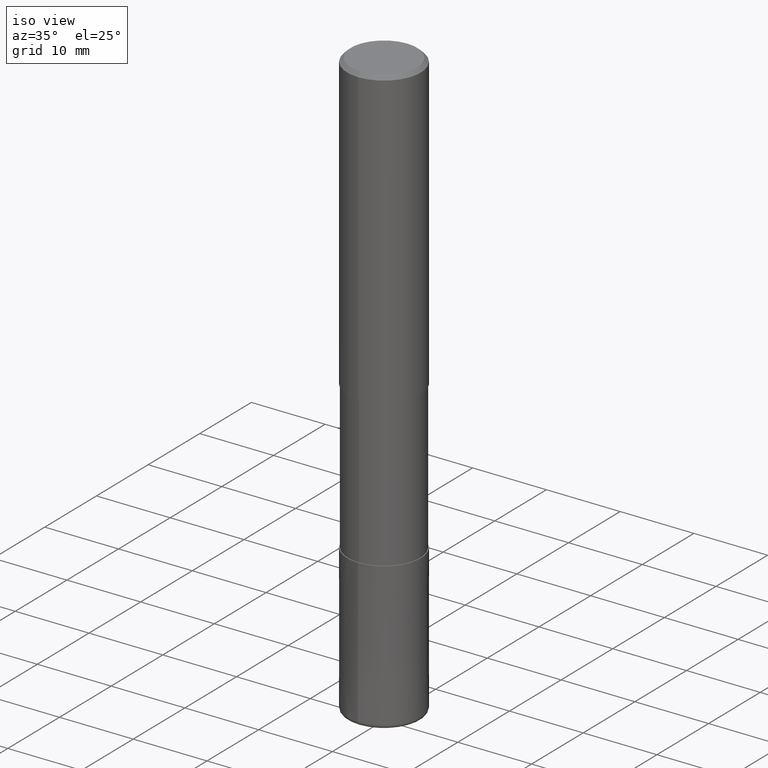
[diagram: clean part render]
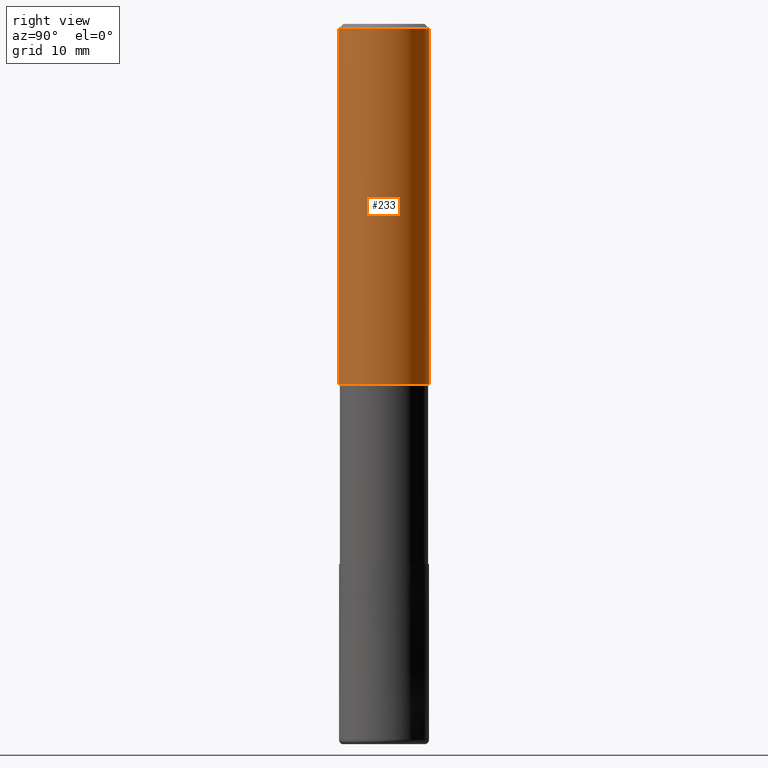
[diagram: tour spotlight — one face highlighted and labeled with its STEP entity id]
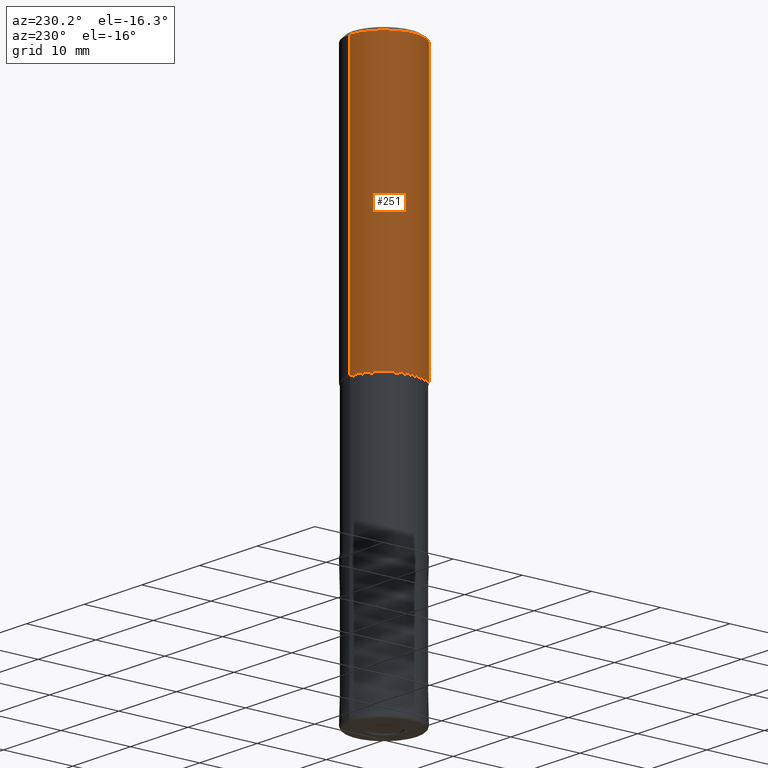
[diagram: tour spotlight — one face highlighted and labeled with its STEP entity id]
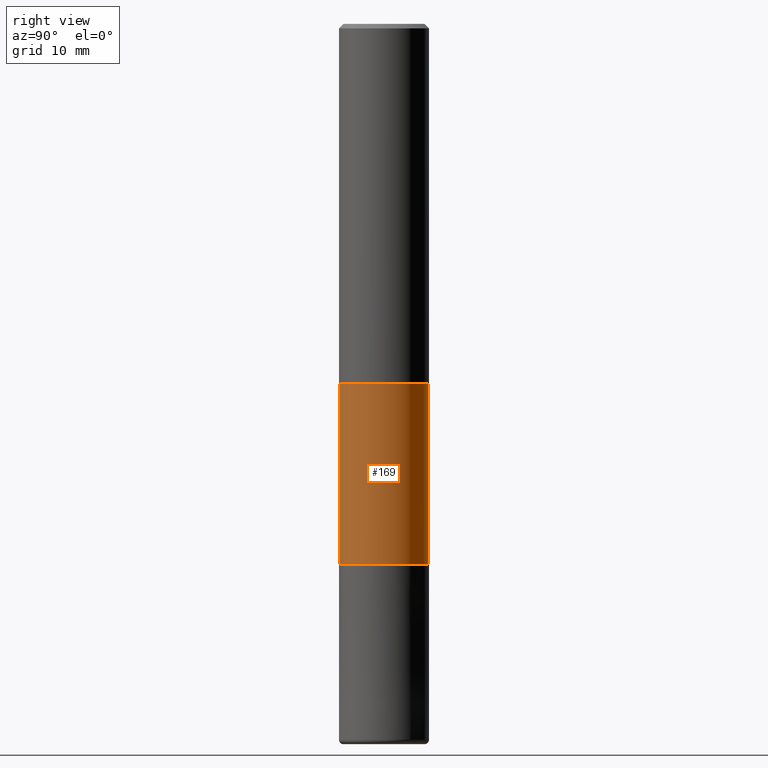
[diagram: tour spotlight — one face highlighted and labeled with its STEP entity id]
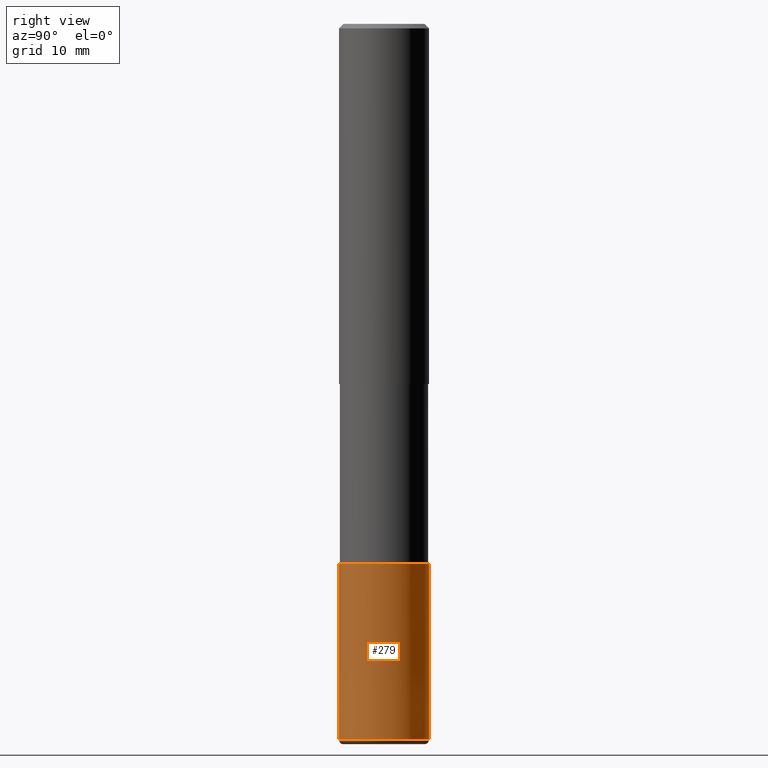
[diagram: tour spotlight — one face highlighted and labeled with its STEP entity id]
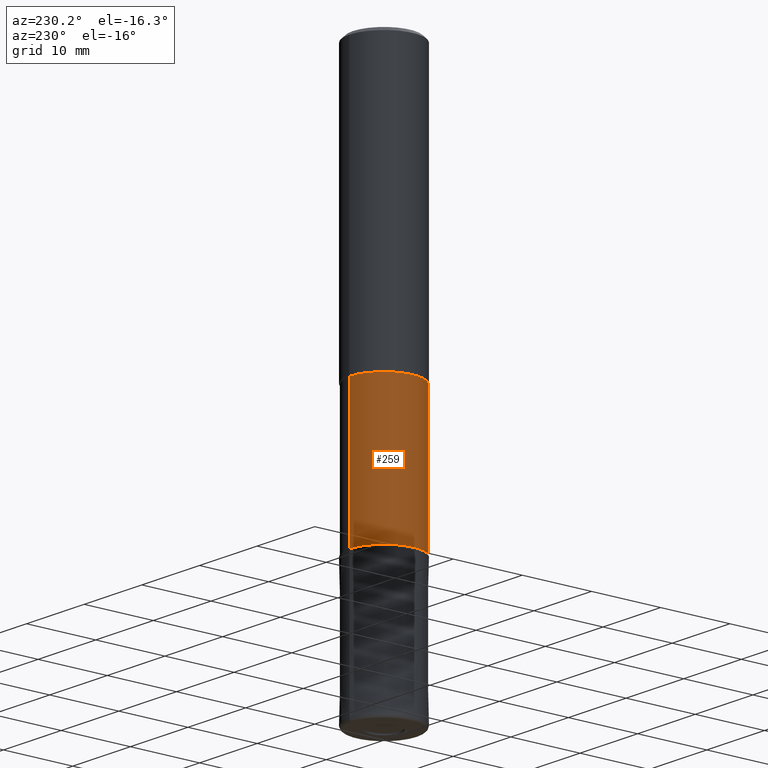
[diagram: tour spotlight — one face highlighted and labeled with its STEP entity id]
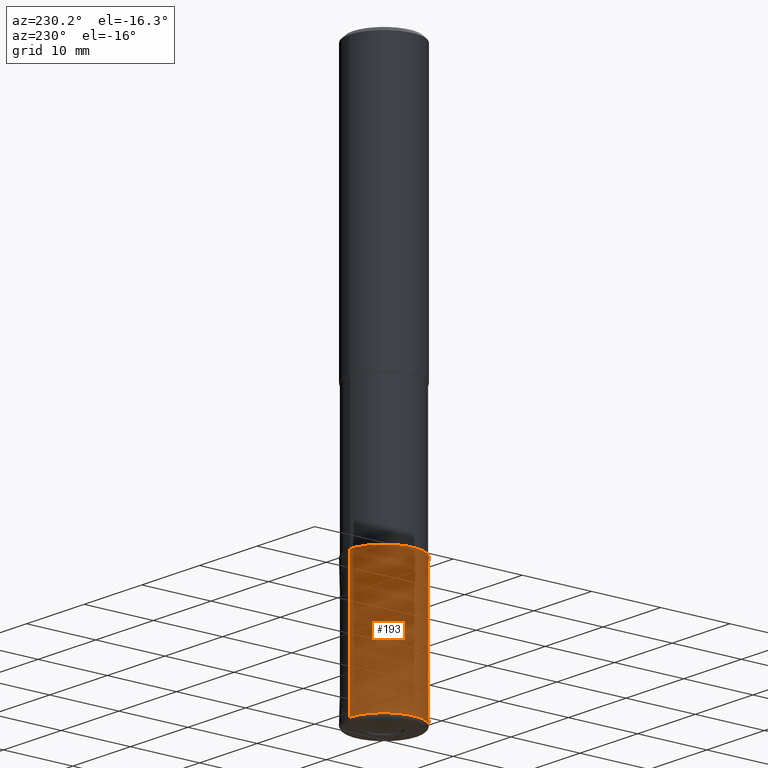
[diagram: tour spotlight — one face highlighted and labeled with its STEP entity id]
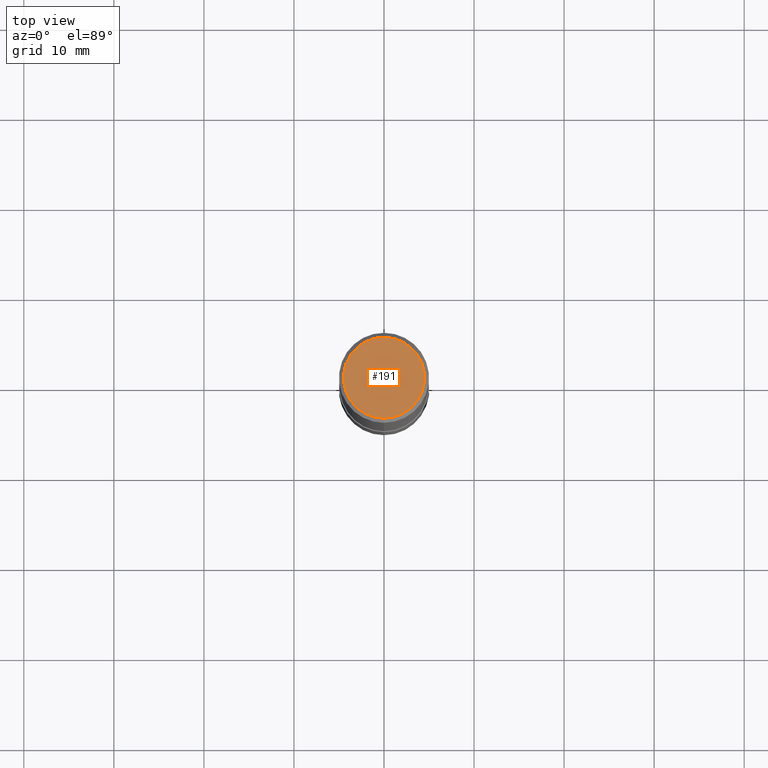
[diagram: tour spotlight — one face highlighted and labeled with its STEP entity id]
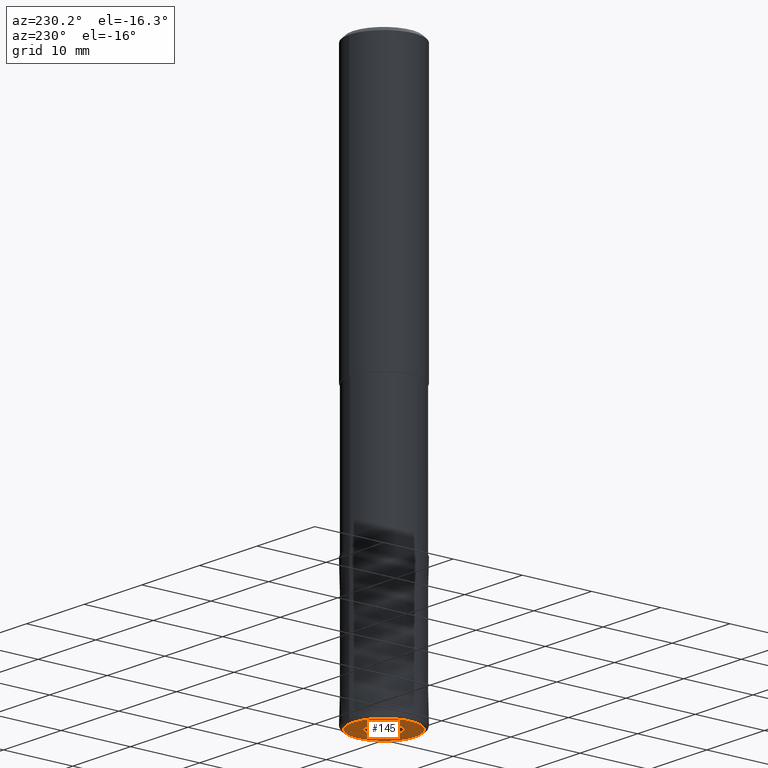
[diagram: tour spotlight — one face highlighted and labeled with its STEP entity id]
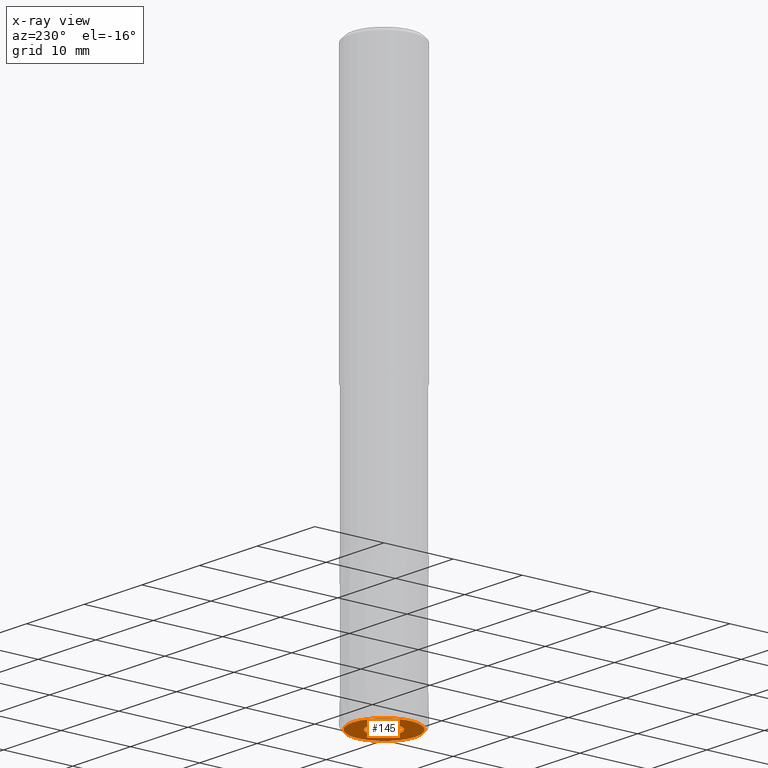
[diagram: x-ray of the same camera — body ghosted, this tour face saturated]
A machine part: a face-by-face anatomy tour. The part has 20 B-rep faces; the first image is the clean iso view, then the 8 largest visible faces are spotlighted one at a time (largest first), each with its STEP entity span.

Face 1 — right view, entity #233. In plain terms, the highlighted cylindrical surface (partial cylindrical patch) has radius 5 mm, axis along (-0, -0, 1).
Definition (entity closure, byte-faithful):
#121=EDGE_CURVE('',#171,#179,#308,.T.);
#139=VERTEX_POINT('',#327);
#141=EDGE_CURVE('',#161,#139,#329,.T.);
#161=VERTEX_POINT('',#354);
#171=VERTEX_POINT('',#366);
#179=VERTEX_POINT('',#377);
#233=ADVANCED_FACE('',(#439),#440,.T.);
#267=EDGE_CURVE('',#179,#139,#476,.T.);
#271=EDGE_CURVE('',#161,#171,#480,.T.);
#308=CIRCLE('',#513,5.0);
#327=CARTESIAN_POINT('',(6.12303176911189E-016,-5.0,-0.5));
#329=CIRCLE('',#539,5.0);
#354=CARTESIAN_POINT('',(0.0,5.0,-0.5));
#366=CARTESIAN_POINT('',(0.0,5.0,-40.0));
#377=CARTESIAN_POINT('',(6.12303176911189E-016,-5.0,-40.0));
#439=FACE_OUTER_BOUND('',#670,.T.);
#440=CYLINDRICAL_SURFACE('',#671,5.0);
#476=LINE('',#721,#722);
#480=LINE('',#728,#729);
#513=AXIS2_PLACEMENT_3D('',#750,#751,#752);
#539=AXIS2_PLACEMENT_3D('',#772,#773,#774);
#670=EDGE_LOOP('',(#927,#928,#929,#930));
#671=AXIS2_PLACEMENT_3D('',#931,#932,#933);
#721=CARTESIAN_POINT('',(6.12303176911189E-016,-5.0,-20.25));
#722=VECTOR('',#969,1.0);
#728=CARTESIAN_POINT('',(-6.12303176911189E-016,5.0,-20.25));
#729=VECTOR('',#973,1.0);
#750=CARTESIAN_POINT('',(0.0,0.0,-40.0));
#751=DIRECTION('',(0.0,0.0,-1.0));
#752=DIRECTION('',(0.0,1.0,0.0));
#772=CARTESIAN_POINT('',(0.0,0.0,-0.5));
#773=DIRECTION('',(0.0,0.0,-1.0));
#774=DIRECTION('',(0.0,1.0,0.0));
#927=ORIENTED_EDGE('',*,*,#271,.F.);
#928=ORIENTED_EDGE('',*,*,#141,.T.);
#929=ORIENTED_EDGE('',*,*,#267,.F.);
#930=ORIENTED_EDGE('',*,*,#121,.F.);
#931=CARTESIAN_POINT('',(0.0,0.0,-20.25));
#932=DIRECTION('',(-0.0,-0.0,1.0));
#933=DIRECTION('',(0.0,1.0,0.0));
#969=DIRECTION('',(-0.0,-0.0,1.0));
#973=DIRECTION('',(0.0,0.0,-1.0));

Face 2 — auxiliary view, entity #251. In plain terms, the highlighted cylindrical surface (partial cylindrical patch) has radius 5 mm, axis along (-0, -0, 1).
Definition (entity closure, byte-faithful):
#139=VERTEX_POINT('',#327);
#151=EDGE_CURVE('',#139,#161,#343,.T.);
#161=VERTEX_POINT('',#354);
#171=VERTEX_POINT('',#366);
#179=VERTEX_POINT('',#377);
#251=ADVANCED_FACE('',(#458),#459,.T.);
#255=EDGE_CURVE('',#179,#171,#463,.T.);
#267=EDGE_CURVE('',#179,#139,#476,.T.);
#271=EDGE_CURVE('',#161,#171,#480,.T.);
#327=CARTESIAN_POINT('',(6.12303176911189E-016,-5.0,-0.5));
#343=CIRCLE('',#555,5.0);
#354=CARTESIAN_POINT('',(0.0,5.0,-0.5));
#366=CARTESIAN_POINT('',(0.0,5.0,-40.0));
#377=CARTESIAN_POINT('',(6.12303176911189E-016,-5.0,-40.0));
#458=FACE_OUTER_BOUND('',#699,.T.);
#459=CYLINDRICAL_SURFACE('',#700,5.0);
#463=CIRCLE('',#705,5.0);
#476=LINE('',#721,#722);
#480=LINE('',#728,#729);
#555=AXIS2_PLACEMENT_3D('',#794,#795,#796);
#699=EDGE_LOOP('',(#945,#946,#947,#948));
#700=AXIS2_PLACEMENT_3D('',#949,#950,#951);
#705=AXIS2_PLACEMENT_3D('',#952,#953,#954);
#721=CARTESIAN_POINT('',(6.12303176911189E-016,-5.0,-20.25));
#722=VECTOR('',#969,1.0);
#728=CARTESIAN_POINT('',(-6.12303176911189E-016,5.0,-20.25));
#729=VECTOR('',#973,1.0);
#794=CARTESIAN_POINT('',(0.0,0.0,-0.5));
#795=DIRECTION('',(0.0,0.0,-1.0));
#796=DIRECTION('',(0.0,1.0,0.0));
#945=ORIENTED_EDGE('',*,*,#271,.T.);
#946=ORIENTED_EDGE('',*,*,#255,.F.);
#947=ORIENTED_EDGE('',*,*,#267,.T.);
#948=ORIENTED_EDGE('',*,*,#151,.T.);
#949=CARTESIAN_POINT('',(0.0,0.0,-20.25));
#950=DIRECTION('',(-0.0,-0.0,1.0));
#951=DIRECTION('',(0.0,1.0,0.0));
#952=CARTESIAN_POINT('',(0.0,0.0,-40.0));
#953=DIRECTION('',(0.0,0.0,-1.0));
#954=DIRECTION('',(0.0,1.0,0.0));
#969=DIRECTION('',(-0.0,-0.0,1.0));
#973=DIRECTION('',(0.0,0.0,-1.0));

Face 3 — right view, entity #169. In plain terms, the highlighted cylindrical surface (partial cylindrical patch) has radius 4.8999 mm, axis along (-0, -0, 1).
Definition (entity closure, byte-faithful):
#117=VERTEX_POINT('',#304);
#153=VERTEX_POINT('',#345);
#157=VERTEX_POINT('',#349);
#169=ADVANCED_FACE('',(#363),#364,.T.);
#211=EDGE_CURVE('',#117,#273,#414,.T.);
#227=EDGE_CURVE('',#153,#273,#431,.T.);
#249=EDGE_CURVE('',#117,#157,#456,.T.);
#263=EDGE_CURVE('',#157,#153,#472,.T.);
#273=VERTEX_POINT('',#482);
#304=CARTESIAN_POINT('',(0.0,4.89995,-40.0));
#345=CARTESIAN_POINT('',(6.00050990341196E-016,-4.89995,-60.0));
#349=CARTESIAN_POINT('',(0.0,4.89995,-60.0));
#363=FACE_OUTER_BOUND('',#578,.T.);
#364=CYLINDRICAL_SURFACE('',#579,4.89995);
#414=CIRCLE('',#638,4.89995);
#431=LINE('',#661,#662);
#456=LINE('',#696,#697);
#472=CIRCLE('',#715,4.89995);
#482=CARTESIAN_POINT('',(6.00050990341196E-016,-4.89995,-40.0));
#578=EDGE_LOOP('',(#818,#819,#820,#821));
#579=AXIS2_PLACEMENT_3D('',#822,#823,#824);
#638=AXIS2_PLACEMENT_3D('',#896,#897,#898);
#661=CARTESIAN_POINT('',(6.00050990341196E-016,-4.89995,-50.0));
#662=VECTOR('',#917,1.0);
#696=CARTESIAN_POINT('',(-6.00050990341196E-016,4.89995,-50.0));
#697=VECTOR('',#943,1.0);
#715=AXIS2_PLACEMENT_3D('',#963,#964,#965);
#818=ORIENTED_EDGE('',*,*,#249,.F.);
#819=ORIENTED_EDGE('',*,*,#211,.T.);
#820=ORIENTED_EDGE('',*,*,#227,.F.);
#821=ORIENTED_EDGE('',*,*,#263,.F.);
#822=CARTESIAN_POINT('',(0.0,0.0,-50.0));
#823=DIRECTION('',(-0.0,-0.0,1.0));
#824=DIRECTION('',(0.0,1.0,0.0));
#896=CARTESIAN_POINT('',(0.0,0.0,-40.0));
#897=DIRECTION('',(0.0,0.0,-1.0));
#898=DIRECTION('',(0.0,1.0,0.0));
#917=DIRECTION('',(-0.0,-0.0,1.0));
#943=DIRECTION('',(0.0,0.0,-1.0));
#963=CARTESIAN_POINT('',(0.0,0.0,-60.0));
#964=DIRECTION('',(0.0,0.0,-1.0));
#965=DIRECTION('',(0.0,1.0,0.0));

Face 4 — right view, entity #279. In plain terms, the highlighted conical surface has half-angle 0 deg.
Definition (entity closure, byte-faithful):
#119=EDGE_CURVE('',#221,#199,#306,.T.);
#137=VERTEX_POINT('',#325);
#199=VERTEX_POINT('',#399);
#201=EDGE_CURVE('',#137,#199,#401,.T.);
#205=EDGE_CURVE('',#223,#137,#406,.T.);
#217=EDGE_CURVE('',#221,#223,#421,.T.);
#221=VERTEX_POINT('',#425);
#223=VERTEX_POINT('',#427);
#279=ADVANCED_FACE('',(#488),#489,.T.);
#306=CIRCLE('',#510,4.9999);
#325=CARTESIAN_POINT('',(6.12303176911189E-016,-5.0,-79.5));
#399=CARTESIAN_POINT('',(6.1229093084765E-016,-4.9999,-60.0));
#401=LINE('',#622,#623);
#406=CIRCLE('',#629,5.0);
#421=LINE('',#647,#648);
#425=CARTESIAN_POINT('',(0.0,4.9999,-60.0));
#427=CARTESIAN_POINT('',(0.0,5.0,-79.5));
#488=FACE_OUTER_BOUND('',#738,.T.);
#489=CONICAL_SURFACE('',#739,4.99995,5.12820512814822E-006);
#510=AXIS2_PLACEMENT_3D('',#747,#748,#749);
#622=CARTESIAN_POINT('',(6.12297053879419E-016,-4.99995,-69.75));
#623=VECTOR('',#870,1.0);
#629=AXIS2_PLACEMENT_3D('',#879,#880,#881);
#647=CARTESIAN_POINT('',(-6.12297053879419E-016,4.99995,-69.75));
#648=VECTOR('',#910,1.0);
#738=EDGE_LOOP('',(#977,#978,#979,#980));
#739=AXIS2_PLACEMENT_3D('',#981,#982,#983);
#747=CARTESIAN_POINT('',(0.0,0.0,-60.0));
#748=DIRECTION('',(0.0,0.0,-1.0));
#749=DIRECTION('',(0.0,1.0,0.0));
#870=DIRECTION('',(-6.28003258360728E-022,5.12820512812574E-006,0.999999999986851));
#879=CARTESIAN_POINT('',(0.0,0.0,-79.5));
#880=DIRECTION('',(0.0,0.0,-1.0));
#881=DIRECTION('',(0.0,1.0,0.0));
#910=DIRECTION('',(-6.28003258360729E-022,5.12820512812574E-006,-0.999999999986851));
#977=ORIENTED_EDGE('',*,*,#217,.F.);
#978=ORIENTED_EDGE('',*,*,#119,.T.);
#979=ORIENTED_EDGE('',*,*,#201,.F.);
#980=ORIENTED_EDGE('',*,*,#205,.F.);
#981=CARTESIAN_POINT('',(0.0,0.0,-69.75));
#982=DIRECTION('',(0.0,-0.0,-1.0));
#983=DIRECTION('',(0.0,1.0,0.0));

Face 5 — auxiliary view, entity #259. In plain terms, the highlighted cylindrical surface (partial cylindrical patch) has radius 4.8999 mm, axis along (-0, -0, 1).
Definition (entity closure, byte-faithful):
#117=VERTEX_POINT('',#304);
#123=EDGE_CURVE('',#153,#157,#310,.T.);
#153=VERTEX_POINT('',#345);
#157=VERTEX_POINT('',#349);
#219=EDGE_CURVE('',#273,#117,#423,.T.);
#227=EDGE_CURVE('',#153,#273,#431,.T.);
#249=EDGE_CURVE('',#117,#157,#456,.T.);
#259=ADVANCED_FACE('',(#467),#468,.T.);
#273=VERTEX_POINT('',#482);
#304=CARTESIAN_POINT('',(0.0,4.89995,-40.0));
#310=CIRCLE('',#516,4.89995);
#345=CARTESIAN_POINT('',(6.00050990341196E-016,-4.89995,-60.0));
#349=CARTESIAN_POINT('',(0.0,4.89995,-60.0));
#423=CIRCLE('',#651,4.89995);
#431=LINE('',#661,#662);
#456=LINE('',#696,#697);
#467=FACE_OUTER_BOUND('',#709,.T.);
#468=CYLINDRICAL_SURFACE('',#710,4.89995);
#482=CARTESIAN_POINT('',(6.00050990341196E-016,-4.89995,-40.0));
#516=AXIS2_PLACEMENT_3D('',#753,#754,#755);
#651=AXIS2_PLACEMENT_3D('',#911,#912,#913);
#661=CARTESIAN_POINT('',(6.00050990341196E-016,-4.89995,-50.0));
#662=VECTOR('',#917,1.0);
#696=CARTESIAN_POINT('',(-6.00050990341196E-016,4.89995,-50.0));
#697=VECTOR('',#943,1.0);
#709=EDGE_LOOP('',(#956,#957,#958,#959));
#710=AXIS2_PLACEMENT_3D('',#960,#961,#962);
#753=CARTESIAN_POINT('',(0.0,0.0,-60.0));
#754=DIRECTION('',(0.0,0.0,-1.0));
#755=DIRECTION('',(0.0,1.0,0.0));
#911=CARTESIAN_POINT('',(0.0,0.0,-40.0));
#912=DIRECTION('',(0.0,0.0,-1.0));
#913=DIRECTION('',(0.0,1.0,0.0));
#917=DIRECTION('',(-0.0,-0.0,1.0));
#943=DIRECTION('',(0.0,0.0,-1.0));
#956=ORIENTED_EDGE('',*,*,#249,.T.);
#957=ORIENTED_EDGE('',*,*,#123,.F.);
#958=ORIENTED_EDGE('',*,*,#227,.T.);
#959=ORIENTED_EDGE('',*,*,#219,.T.);
#960=CARTESIAN_POINT('',(0.0,0.0,-50.0));
#961=DIRECTION('',(-0.0,-0.0,1.0));
#962=DIRECTION('',(0.0,1.0,0.0));

Face 6 — auxiliary view, entity #193. In plain terms, the highlighted conical surface has half-angle 0 deg.
Definition (entity closure, byte-faithful):
#137=VERTEX_POINT('',#325);
#193=ADVANCED_FACE('',(#392),#393,.T.);
#199=VERTEX_POINT('',#399);
#201=EDGE_CURVE('',#137,#199,#401,.T.);
#217=EDGE_CURVE('',#221,#223,#421,.T.);
#221=VERTEX_POINT('',#425);
#223=VERTEX_POINT('',#427);
#245=EDGE_CURVE('',#199,#221,#452,.T.);
#269=EDGE_CURVE('',#137,#223,#478,.T.);
#325=CARTESIAN_POINT('',(6.12303176911189E-016,-5.0,-79.5));
#392=FACE_OUTER_BOUND('',#611,.T.);
#393=CONICAL_SURFACE('',#612,4.99995,5.12820512814822E-006);
#399=CARTESIAN_POINT('',(6.1229093084765E-016,-4.9999,-60.0));
#401=LINE('',#622,#623);
#421=LINE('',#647,#648);
#425=CARTESIAN_POINT('',(0.0,4.9999,-60.0));
#427=CARTESIAN_POINT('',(0.0,5.0,-79.5));
#452=CIRCLE('',#691,4.9999);
#478=CIRCLE('',#725,5.0);
#611=EDGE_LOOP('',(#860,#861,#862,#863));
#612=AXIS2_PLACEMENT_3D('',#864,#865,#866);
#622=CARTESIAN_POINT('',(6.12297053879419E-016,-4.99995,-69.75));
#623=VECTOR('',#870,1.0);
#647=CARTESIAN_POINT('',(-6.12297053879419E-016,4.99995,-69.75));
#648=VECTOR('',#910,1.0);
#691=AXIS2_PLACEMENT_3D('',#940,#941,#942);
#725=AXIS2_PLACEMENT_3D('',#970,#971,#972);
#860=ORIENTED_EDGE('',*,*,#217,.T.);
#861=ORIENTED_EDGE('',*,*,#269,.F.);
#862=ORIENTED_EDGE('',*,*,#201,.T.);
#863=ORIENTED_EDGE('',*,*,#245,.T.);
#864=CARTESIAN_POINT('',(0.0,0.0,-69.75));
#865=DIRECTION('',(0.0,-0.0,-1.0));
#866=DIRECTION('',(0.0,1.0,0.0));
#870=DIRECTION('',(-6.28003258360728E-022,5.12820512812574E-006,0.999999999986851));
#910=DIRECTION('',(-6.28003258360729E-022,5.12820512812574E-006,-0.999999999986851));
#940=CARTESIAN_POINT('',(0.0,0.0,-60.0));
#941=DIRECTION('',(0.0,0.0,-1.0));
#942=DIRECTION('',(0.0,1.0,0.0));
#970=CARTESIAN_POINT('',(0.0,0.0,-79.5));
#971=DIRECTION('',(0.0,0.0,-1.0));
#972=DIRECTION('',(0.0,1.0,0.0));

Face 7 — top view, entity #191. In plain terms, the highlighted planar face has unit normal (-0, 0, 1).
Definition (entity closure, byte-faithful):
#177=EDGE_CURVE('',#241,#257,#375,.T.);
#191=ADVANCED_FACE('',(#389),#390,.T.);
#213=EDGE_CURVE('',#257,#241,#416,.T.);
#241=VERTEX_POINT('',#448);
#257=VERTEX_POINT('',#465);
#375=CIRCLE('',#591,4.5);
#389=FACE_OUTER_BOUND('',#608,.T.);
#390=PLANE('',#609);
#416=CIRCLE('',#641,4.5);
#448=CARTESIAN_POINT('',(0.0,4.5,0.0));
#465=CARTESIAN_POINT('',(5.5107285922007E-016,-4.5,0.0));
#591=AXIS2_PLACEMENT_3D('',#841,#842,#843);
#608=EDGE_LOOP('',(#854,#855));
#609=AXIS2_PLACEMENT_3D('',#856,#857,#858);
#641=AXIS2_PLACEMENT_3D('',#899,#900,#901);
#841=CARTESIAN_POINT('',(0.0,0.0,0.0));
#842=DIRECTION('',(0.0,0.0,-1.0));
#843=DIRECTION('',(0.0,1.0,0.0));
#854=ORIENTED_EDGE('',*,*,#177,.F.);
#855=ORIENTED_EDGE('',*,*,#213,.F.);
#856=CARTESIAN_POINT('',(0.0,2.25,0.0));
#857=DIRECTION('',(-0.0,0.0,1.0));
#858=DIRECTION('',(0.0,-1.0,0.0));
#899=CARTESIAN_POINT('',(0.0,0.0,0.0));
#900=DIRECTION('',(0.0,0.0,-1.0));
#901=DIRECTION('',(0.0,1.0,0.0));

Face 8 — auxiliary view, entity #145. An x-ray twin of the same camera follows (body ghosted, this face saturated) — the face is partly hidden behind the body. In plain terms, the highlighted planar face has unit normal (0, 0, -1).
Definition (entity closure, byte-faithful):
#135=EDGE_CURVE('',#253,#231,#323,.T.);
#145=ADVANCED_FACE('',(#335,#336),#337,.T.);
#181=VERTEX_POINT('',#379);
#183=VERTEX_POINT('',#381);
#187=EDGE_CURVE('',#183,#181,#385,.T.);
#231=VERTEX_POINT('',#437);
#239=EDGE_CURVE('',#181,#183,#446,.T.);
#253=VERTEX_POINT('',#461);
#265=EDGE_CURVE('',#231,#253,#474,.T.);
#323=CIRCLE('',#532,4.5);
#335=FACE_BOUND('',#545,.T.);
#336=FACE_OUTER_BOUND('',#546,.T.);
#337=PLANE('',#547);
#379=CARTESIAN_POINT('',(0.0,2.25,-80.0));
#381=CARTESIAN_POINT('',(2.75536429610035E-016,-2.25,-80.0));
#385=CIRCLE('',#603,2.25);
#437=CARTESIAN_POINT('',(0.0,4.5,-80.0));
#446=CIRCLE('',#682,2.25);
#461=CARTESIAN_POINT('',(5.5107285922007E-016,-4.5,-80.0));
#474=CIRCLE('',#718,4.5);
#532=AXIS2_PLACEMENT_3D('',#769,#770,#771);
#545=EDGE_LOOP('',(#784,#785));
#546=EDGE_LOOP('',(#786,#787));
#547=AXIS2_PLACEMENT_3D('',#788,#789,#790);
#603=AXIS2_PLACEMENT_3D('',#847,#848,#849);
#682=AXIS2_PLACEMENT_3D('',#936,#937,#938);
#718=AXIS2_PLACEMENT_3D('',#966,#967,#968);
#769=CARTESIAN_POINT('',(0.0,0.0,-80.0));
#770=DIRECTION('',(0.0,0.0,-1.0));
#771=DIRECTION('',(0.0,1.0,0.0));
#784=ORIENTED_EDGE('',*,*,#239,.F.);
#785=ORIENTED_EDGE('',*,*,#187,.F.);
#786=ORIENTED_EDGE('',*,*,#265,.T.);
#787=ORIENTED_EDGE('',*,*,#135,.T.);
#788=CARTESIAN_POINT('',(0.0,3.375,-80.0));
#789=DIRECTION('',(0.0,0.0,-1.0));
#790=DIRECTION('',(0.0,1.0,0.0));
#847=CARTESIAN_POINT('',(0.0,0.0,-80.0));
#848=DIRECTION('',(0.0,0.0,-1.0));
#849=DIRECTION('',(0.0,1.0,0.0));
#936=CARTESIAN_POINT('',(0.0,0.0,-80.0));
#937=DIRECTION('',(0.0,0.0,-1.0));
#938=DIRECTION('',(0.0,1.0,0.0));
#966=CARTESIAN_POINT('',(0.0,0.0,-80.0));
#967=DIRECTION('',(0.0,0.0,-1.0));
#968=DIRECTION('',(0.0,1.0,0.0));